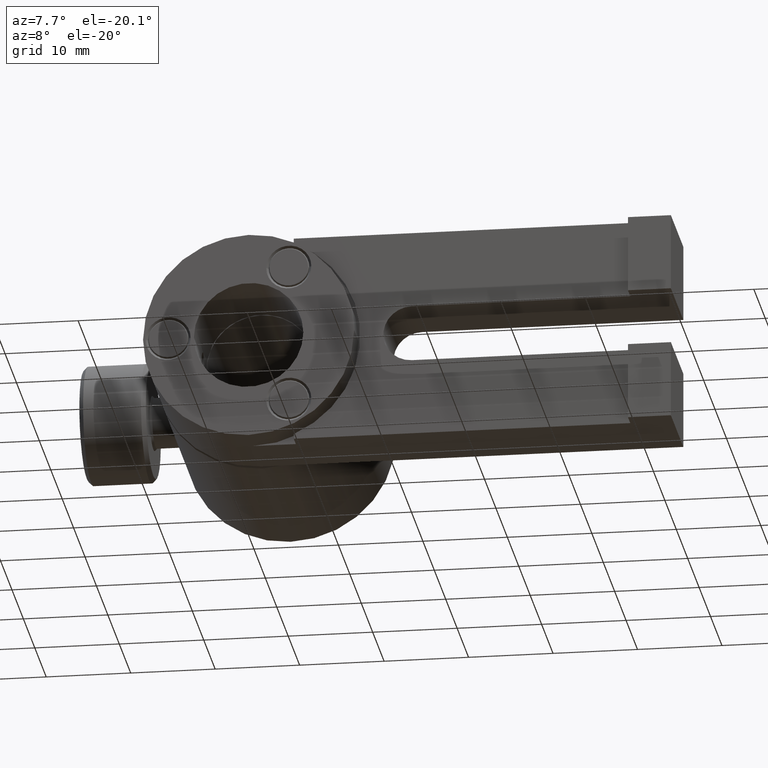
[diagram: clean part render]
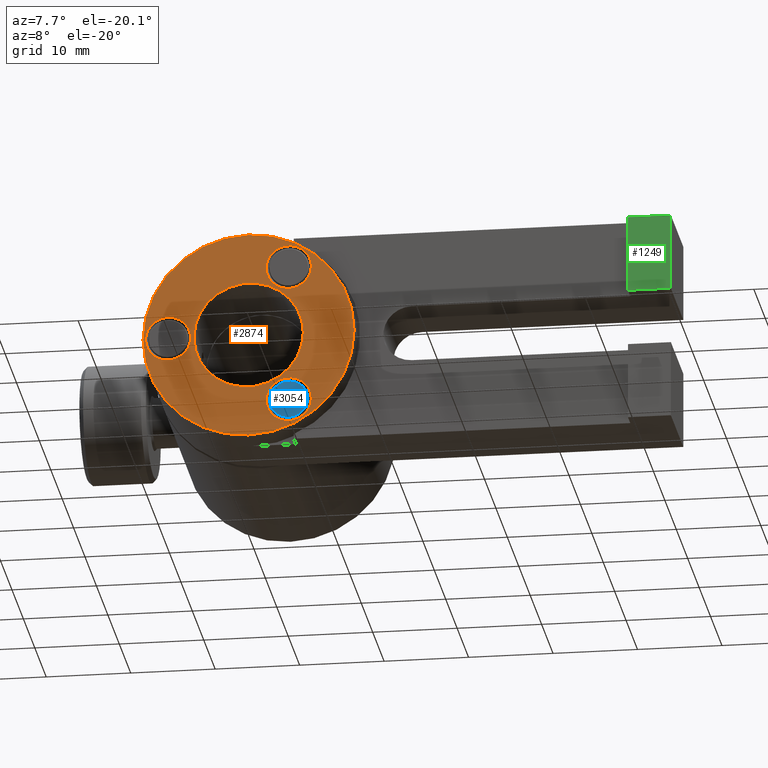
[diagram: same view with three faces highlighted in distinct colors, each labeled with its STEP entity id]
A machine part, auxiliary view with three faces highlighted in distinct colors.
Their STEP definitions:

[orange] entity #2874 — the highlighted planar face has unit normal (0, 1, 0).
#3 = FACE_BOUND ( 'NONE', #1684, .T. ) ;
#8 = AXIS2_PLACEMENT_3D ( 'NONE', #556, #1047, #1623 ) ;
#31 = DIRECTION ( 'NONE',  ( -1.000000000000000000, 0.0000000000000000000, -3.577419991703202400E-014 ) ) ;
#34 = EDGE_CURVE ( 'NONE', #257, #3602, #1020, .T. ) ;
#43 = AXIS2_PLACEMENT_3D ( 'NONE', #1921, #513, #218 ) ;
#54 = ORIENTED_EDGE ( 'NONE', *, *, #2358, .T. ) ;
#96 = ORIENTED_EDGE ( 'NONE', *, *, #2424, .T. ) ;
#187 = CARTESIAN_POINT ( 'NONE',  ( 11.55256664389171400, -5.173065212235105300, -8.248891971046347700 ) ) ;
#218 = DIRECTION ( 'NONE',  ( -1.000000000000000000, 0.0000000000000000000, -3.552366734105304900E-014 ) ) ;
#257 = VERTEX_POINT ( 'NONE', #961 ) ;
#262 = CIRCLE ( 'NONE', #2828, 2.666999999999999400 ) ;
#267 = AXIS2_PLACEMENT_3D ( 'NONE', #2669, #2963, #461 ) ;
#283 = PLANE ( 'NONE',  #990 ) ;
#288 = DIRECTION ( 'NONE',  ( -1.000000000000000000, 0.0000000000000000000, -3.577419991703202400E-014 ) ) ;
#293 = CARTESIAN_POINT ( 'NONE',  ( 27.25954881087196900, -5.173065212235105300, 9.676094679240765700E-013 ) ) ;
#335 = VERTEX_POINT ( 'NONE', #187 ) ;
#396 = CARTESIAN_POINT ( 'NONE',  ( 4.123066643891380800, -5.173065212235105300, 1.457167719820518700E-013 ) ) ;
#447 = CARTESIAN_POINT ( 'NONE',  ( -8.373733356108621400, -5.173065212235105300, -2.982153940456199100E-013 ) ) ;
#461 = DIRECTION ( 'NONE',  ( -1.000000000000000000, 0.0000000000000000000, -3.577419991703202400E-014 ) ) ;
#513 = DIRECTION ( 'NONE',  ( 0.0000000000000000000, 1.000000000000000000, 0.0000000000000000000 ) ) ;
#531 = FACE_OUTER_BOUND ( 'NONE', #2898, .T. ) ;
#534 = CIRCLE ( 'NONE', #8, 2.666999999999999400 ) ;
#556 = CARTESIAN_POINT ( 'NONE',  ( 8.885566643891005300, -5.173065212235105300, 8.248891971047143600 ) ) ;
#582 = CIRCLE ( 'NONE', #267, 2.666999999999999400 ) ;
#608 = FACE_BOUND ( 'NONE', #3396, .T. ) ;
#668 = AXIS2_PLACEMENT_3D ( 'NONE', #3291, #3593, #3319 ) ;
#730 = EDGE_CURVE ( 'NONE', #971, #335, #582, .T. ) ;
#876 = EDGE_LOOP ( 'NONE', ( #96, #1004 ) ) ;
#961 = CARTESIAN_POINT ( 'NONE',  ( 6.218566643891006300, -5.173065212235105300, 8.248891971047049400 ) ) ;
#962 = ORIENTED_EDGE ( 'NONE', *, *, #1018, .F. ) ;
#971 = VERTEX_POINT ( 'NONE', #2111 ) ;
#990 = AXIS2_PLACEMENT_3D ( 'NONE', #293, #2804, #2818 ) ;
#998 = FACE_BOUND ( 'NONE', #1435, .T. ) ;
#1001 = CARTESIAN_POINT ( 'NONE',  ( 11.55256664389100500, -5.173065212235105300, 8.248891971047237700 ) ) ;
#1004 = ORIENTED_EDGE ( 'NONE', *, *, #730, .T. ) ;
#1018 = EDGE_CURVE ( 'NONE', #1544, #3060, #2532, .T. ) ;
#1020 = CIRCLE ( 'NONE', #2237, 2.666999999999999400 ) ;
#1038 = VERTEX_POINT ( 'NONE', #1567 ) ;
#1047 = DIRECTION ( 'NONE',  ( 0.0000000000000000000, 1.000000000000000000, 0.0000000000000000000 ) ) ;
#1052 = DIRECTION ( 'NONE',  ( 0.0000000000000000000, 1.000000000000000000, 0.0000000000000000000 ) ) ;
#1123 = VERTEX_POINT ( 'NONE', #1313 ) ;
#1237 = DIRECTION ( 'NONE',  ( 0.0000000000000000000, 1.000000000000000000, 0.0000000000000000000 ) ) ;
#1263 = FACE_BOUND ( 'NONE', #876, .T. ) ;
#1271 = CIRCLE ( 'NONE', #3210, 2.667000000000001100 ) ;
#1294 = EDGE_CURVE ( 'NONE', #3060, #1544, #1412, .T. ) ;
#1313 = CARTESIAN_POINT ( 'NONE',  ( 10.60006664389137900, -5.173065212235105300, 3.765967690818601100E-013 ) ) ;
#1408 = CARTESIAN_POINT ( 'NONE',  ( -5.401933356108623100, -5.173065212235105300, -1.926461594414785800E-013 ) ) ;
#1411 = VERTEX_POINT ( 'NONE', #2646 ) ;
#1412 = CIRCLE ( 'NONE', #2489, 12.49680000000000200 ) ;
#1422 = CARTESIAN_POINT ( 'NONE',  ( 8.885566643891714000, -5.173065212235105300, -8.248891971046440100 ) ) ;
#1435 = EDGE_LOOP ( 'NONE', ( #2547, #2351 ) ) ;
#1520 = AXIS2_PLACEMENT_3D ( 'NONE', #396, #1237, #1813 ) ;
#1544 = VERTEX_POINT ( 'NONE', #447 ) ;
#1567 = CARTESIAN_POINT ( 'NONE',  ( -2.353933356108619100, -5.173065212235105300, -8.437002138594873400E-014 ) ) ;
#1613 = EDGE_CURVE ( 'NONE', #1411, #2016, #1757, .T. ) ;
#1623 = DIRECTION ( 'NONE',  ( -1.000000000000000000, 0.0000000000000000000, -3.577419991703202400E-014 ) ) ;
#1681 = ORIENTED_EDGE ( 'NONE', *, *, #2666, .T. ) ;
#1684 = EDGE_LOOP ( 'NONE', ( #1895, #1681 ) ) ;
#1699 = CARTESIAN_POINT ( 'NONE',  ( 8.885566643891005300, -5.173065212235105300, 8.248891971047143600 ) ) ;
#1701 = DIRECTION ( 'NONE',  ( 0.0000000000000000000, 1.000000000000000000, 0.0000000000000000000 ) ) ;
#1709 = CIRCLE ( 'NONE', #43, 6.477000000000000300 ) ;
#1757 = CIRCLE ( 'NONE', #3473, 2.667000000000001100 ) ;
#1813 = DIRECTION ( 'NONE',  ( -1.000000000000000000, 0.0000000000000000000, -3.552366734105304300E-014 ) ) ;
#1895 = ORIENTED_EDGE ( 'NONE', *, *, #2598, .T. ) ;
#1921 = CARTESIAN_POINT ( 'NONE',  ( 4.123066643891380800, -5.173065212235105300, 1.457167719820518700E-013 ) ) ;
#2012 = EDGE_CURVE ( 'NONE', #2016, #1411, #1271, .T. ) ;
#2016 = VERTEX_POINT ( 'NONE', #2567 ) ;
#2089 = ORIENTED_EDGE ( 'NONE', *, *, #1294, .F. ) ;
#2111 = CARTESIAN_POINT ( 'NONE',  ( 6.218566643891713300, -5.173065212235105300, -8.248891971046534300 ) ) ;
#2234 = CARTESIAN_POINT ( 'NONE',  ( 4.123066643891380800, -5.173065212235105300, 1.457167719820518700E-013 ) ) ;
#2237 = AXIS2_PLACEMENT_3D ( 'NONE', #1699, #3458, #288 ) ;
#2298 = DIRECTION ( 'NONE',  ( -1.000000000000000000, 0.0000000000000000000, -3.552366734105304300E-014 ) ) ;
#2351 = ORIENTED_EDGE ( 'NONE', *, *, #2012, .T. ) ;
#2358 = EDGE_CURVE ( 'NONE', #3602, #257, #534, .T. ) ;
#2424 = EDGE_CURVE ( 'NONE', #335, #971, #262, .T. ) ;
#2474 = CARTESIAN_POINT ( 'NONE',  ( -5.401933356108623100, -5.173065212235105300, -1.926461594414785800E-013 ) ) ;
#2489 = AXIS2_PLACEMENT_3D ( 'NONE', #2234, #2579, #2298 ) ;
#2532 = CIRCLE ( 'NONE', #1520, 12.49680000000000200 ) ;
#2547 = ORIENTED_EDGE ( 'NONE', *, *, #1613, .T. ) ;
#2567 = CARTESIAN_POINT ( 'NONE',  ( -8.068933356108624700, -5.173065212235105300, -2.870611669387344800E-013 ) ) ;
#2573 = DIRECTION ( 'NONE',  ( 0.0000000000000000000, 1.000000000000000000, 0.0000000000000000000 ) ) ;
#2579 = DIRECTION ( 'NONE',  ( 0.0000000000000000000, 1.000000000000000000, 0.0000000000000000000 ) ) ;
#2598 = EDGE_CURVE ( 'NONE', #1038, #1123, #3145, .T. ) ;
#2646 = CARTESIAN_POINT ( 'NONE',  ( -2.734933356108621500, -5.173065212235105300, -9.790453864289004100E-014 ) ) ;
#2666 = EDGE_CURVE ( 'NONE', #1123, #1038, #1709, .T. ) ;
#2669 = CARTESIAN_POINT ( 'NONE',  ( 8.885566643891714000, -5.173065212235105300, -8.248891971046440100 ) ) ;
#2804 = DIRECTION ( 'NONE',  ( 0.0000000000000000000, 1.000000000000000000, 0.0000000000000000000 ) ) ;
#2818 = DIRECTION ( 'NONE',  ( -1.000000000000000000, 0.0000000000000000000, -3.552366734105304900E-014 ) ) ;
#2828 = AXIS2_PLACEMENT_3D ( 'NONE', #1422, #1701, #31 ) ;
#2874 = ADVANCED_FACE ( 'NONE', ( #1263, #608, #998, #531, #3 ), #283, .F. ) ;
#2898 = EDGE_LOOP ( 'NONE', ( #962, #2089 ) ) ;
#2963 = DIRECTION ( 'NONE',  ( 0.0000000000000000000, 1.000000000000000000, 0.0000000000000000000 ) ) ;
#3060 = VERTEX_POINT ( 'NONE', #3209 ) ;
#3145 = CIRCLE ( 'NONE', #668, 6.477000000000000300 ) ;
#3209 = CARTESIAN_POINT ( 'NONE',  ( 16.61986664389138100, -5.173065212235105300, 5.911793546216819800E-013 ) ) ;
#3210 = AXIS2_PLACEMENT_3D ( 'NONE', #1408, #2573, #3368 ) ;
#3268 = DIRECTION ( 'NONE',  ( -1.000000000000000000, 0.0000000000000000000, -3.552366734105305600E-014 ) ) ;
#3291 = CARTESIAN_POINT ( 'NONE',  ( 4.123066643891380800, -5.173065212235105300, 1.457167719820518700E-013 ) ) ;
#3319 = DIRECTION ( 'NONE',  ( -1.000000000000000000, 0.0000000000000000000, -3.552366734105304900E-014 ) ) ;
#3368 = DIRECTION ( 'NONE',  ( -1.000000000000000000, 0.0000000000000000000, -3.552366734105305600E-014 ) ) ;
#3396 = EDGE_LOOP ( 'NONE', ( #54, #3555 ) ) ;
#3458 = DIRECTION ( 'NONE',  ( 0.0000000000000000000, 1.000000000000000000, 0.0000000000000000000 ) ) ;
#3473 = AXIS2_PLACEMENT_3D ( 'NONE', #2474, #1052, #3268 ) ;
#3555 = ORIENTED_EDGE ( 'NONE', *, *, #34, .T. ) ;
#3593 = DIRECTION ( 'NONE',  ( 0.0000000000000000000, 1.000000000000000000, 0.0000000000000000000 ) ) ;
#3602 = VERTEX_POINT ( 'NONE', #1001 ) ;

[blue] entity #3054 — the highlighted planar face has unit normal (0, -1, 0).
#214 = AXIS2_PLACEMENT_3D ( 'NONE', #1825, #3556, #2705 ) ;
#337 = EDGE_CURVE ( 'NONE', #911, #2714, #3431, .T. ) ;
#570 = CIRCLE ( 'NONE', #214, 2.254250000000000800 ) ;
#648 = DIRECTION ( 'NONE',  ( 0.0000000000000000000, -1.000000000000000000, 0.0000000000000000000 ) ) ;
#790 = CARTESIAN_POINT ( 'NONE',  ( 6.631706789922083600, -5.173065212235104400, -8.290830272919476900 ) ) ;
#911 = VERTEX_POINT ( 'NONE', #2463 ) ;
#1330 = CARTESIAN_POINT ( 'NONE',  ( 8.885566643891715800, -5.173065212235104400, -8.248891971046431200 ) ) ;
#1433 = FACE_OUTER_BOUND ( 'NONE', #1626, .T. ) ;
#1504 = DIRECTION ( 'NONE',  ( 0.9998269286767796900, 0.0000000000000000000, 0.01860410419121435300 ) ) ;
#1626 = EDGE_LOOP ( 'NONE', ( #3257, #3475 ) ) ;
#1773 = PLANE ( 'NONE',  #3063 ) ;
#1825 = CARTESIAN_POINT ( 'NONE',  ( 8.885566643891715800, -5.173065212235104400, -8.248891971046431200 ) ) ;
#2390 = CARTESIAN_POINT ( 'NONE',  ( 8.843628342018670100, -5.173065212235105300, -5.995032117076800800 ) ) ;
#2463 = CARTESIAN_POINT ( 'NONE',  ( 11.13942649786134700, -5.173065212235104400, -8.206953669173385500 ) ) ;
#2508 = EDGE_CURVE ( 'NONE', #2714, #911, #570, .T. ) ;
#2705 = DIRECTION ( 'NONE',  ( 0.9998269286767798000, 0.0000000000000000000, 0.01860410419121467900 ) ) ;
#2714 = VERTEX_POINT ( 'NONE', #790 ) ;
#3037 = AXIS2_PLACEMENT_3D ( 'NONE', #1330, #3264, #3296 ) ;
#3054 = ADVANCED_FACE ( 'NONE', ( #1433 ), #1773, .T. ) ;
#3063 = AXIS2_PLACEMENT_3D ( 'NONE', #2390, #648, #1504 ) ;
#3257 = ORIENTED_EDGE ( 'NONE', *, *, #337, .T. ) ;
#3264 = DIRECTION ( 'NONE',  ( 0.0000000000000000000, -1.000000000000000000, 0.0000000000000000000 ) ) ;
#3296 = DIRECTION ( 'NONE',  ( 0.9998269286767798000, 0.0000000000000000000, 0.01860410419121467900 ) ) ;
#3431 = CIRCLE ( 'NONE', #3037, 2.254250000000000800 ) ;
#3475 = ORIENTED_EDGE ( 'NONE', *, *, #2508, .T. ) ;
#3556 = DIRECTION ( 'NONE',  ( 0.0000000000000000000, -1.000000000000000000, 0.0000000000000000000 ) ) ;

[green] entity #1249 — the highlighted planar face has unit normal (0, 1, -0).
#93 = CARTESIAN_POINT ( 'NONE',  ( 49.04306664389137900, -5.223865212235105900, 12.49679999999999900 ) ) ;
#131 = VERTEX_POINT ( 'NONE', #93 ) ;
#247 = CARTESIAN_POINT ( 'NONE',  ( -29.62103515794081700, -5.223865212235105900, 12.49679999999999900 ) ) ;
#481 = LINE ( 'NONE', #1326, #2632 ) ;
#485 = DIRECTION ( 'NONE',  ( -1.000000000000000000, 0.0000000000000000000, 7.006152972442677000E-017 ) ) ;
#748 = VECTOR ( 'NONE', #3600, 1000.000000000000000 ) ;
#816 = CARTESIAN_POINT ( 'NONE',  ( 54.12306664389138400, -5.223865212235105900, 8.999471541716452500E-015 ) ) ;
#872 = CARTESIAN_POINT ( 'NONE',  ( 54.12306664389138400, -5.223865212235105900, 3.365500000000003900 ) ) ;
#1212 = VERTEX_POINT ( 'NONE', #3330 ) ;
#1249 = ADVANCED_FACE ( 'NONE', ( #3155 ), #3595, .F. ) ;
#1326 = CARTESIAN_POINT ( 'NONE',  ( -29.62103515794081700, -5.223865212235105900, 3.365500000000010200 ) ) ;
#1382 = CARTESIAN_POINT ( 'NONE',  ( -29.62103515794081700, -5.223865212235105900, 8.999471541716452500E-015 ) ) ;
#1424 = ORIENTED_EDGE ( 'NONE', *, *, #2606, .F. ) ;
#1548 = ORIENTED_EDGE ( 'NONE', *, *, #1964, .F. ) ;
#1552 = AXIS2_PLACEMENT_3D ( 'NONE', #1382, #1944, #3359 ) ;
#1636 = LINE ( 'NONE', #2485, #2065 ) ;
#1642 = DIRECTION ( 'NONE',  ( 0.0000000000000000000, 0.0000000000000000000, -1.000000000000000000 ) ) ;
#1944 = DIRECTION ( 'NONE',  ( 0.0000000000000000000, 1.000000000000000000, -0.0000000000000000000 ) ) ;
#1964 = EDGE_CURVE ( 'NONE', #1212, #131, #1636, .T. ) ;
#1990 = EDGE_CURVE ( 'NONE', #131, #3389, #2482, .T. ) ;
#2001 = VERTEX_POINT ( 'NONE', #872 ) ;
#2065 = VECTOR ( 'NONE', #3362, 1000.000000000000000 ) ;
#2304 = ORIENTED_EDGE ( 'NONE', *, *, #1990, .F. ) ;
#2363 = EDGE_LOOP ( 'NONE', ( #2304, #1548, #1424, #2916 ) ) ;
#2428 = LINE ( 'NONE', #816, #3106 ) ;
#2482 = LINE ( 'NONE', #247, #748 ) ;
#2485 = CARTESIAN_POINT ( 'NONE',  ( 49.04306664389137900, -5.223865212235105900, 8.999471541716452500E-015 ) ) ;
#2606 = EDGE_CURVE ( 'NONE', #2001, #1212, #481, .T. ) ;
#2632 = VECTOR ( 'NONE', #485, 1000.000000000000000 ) ;
#2731 = EDGE_CURVE ( 'NONE', #3389, #2001, #2428, .T. ) ;
#2916 = ORIENTED_EDGE ( 'NONE', *, *, #2731, .F. ) ;
#3106 = VECTOR ( 'NONE', #1642, 1000.000000000000000 ) ;
#3155 = FACE_OUTER_BOUND ( 'NONE', #2363, .T. ) ;
#3187 = CARTESIAN_POINT ( 'NONE',  ( 54.12306664389138400, -5.223865212235105900, 12.49679999999999900 ) ) ;
#3330 = CARTESIAN_POINT ( 'NONE',  ( 49.04306664389137900, -5.223865212235105900, 3.365500000000004400 ) ) ;
#3359 = DIRECTION ( 'NONE',  ( 0.0000000000000000000, 0.0000000000000000000, 1.000000000000000000 ) ) ;
#3362 = DIRECTION ( 'NONE',  ( 0.0000000000000000000, 0.0000000000000000000, 1.000000000000000000 ) ) ;
#3389 = VERTEX_POINT ( 'NONE', #3187 ) ;
#3595 = PLANE ( 'NONE',  #1552 ) ;
#3600 = DIRECTION ( 'NONE',  ( 1.000000000000000000, -0.0000000000000000000, 0.0000000000000000000 ) ) ;